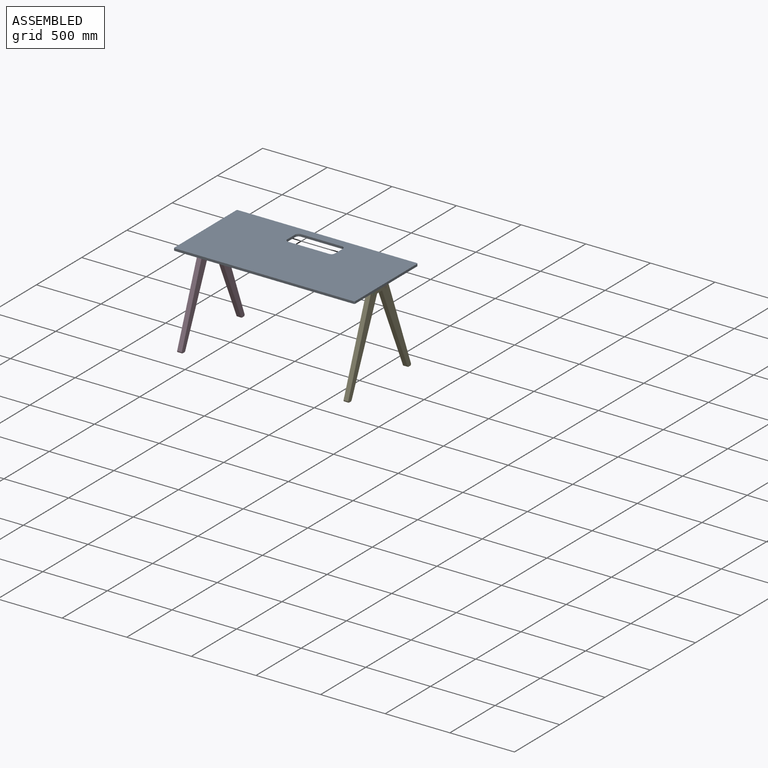
[diagram: assembled view]
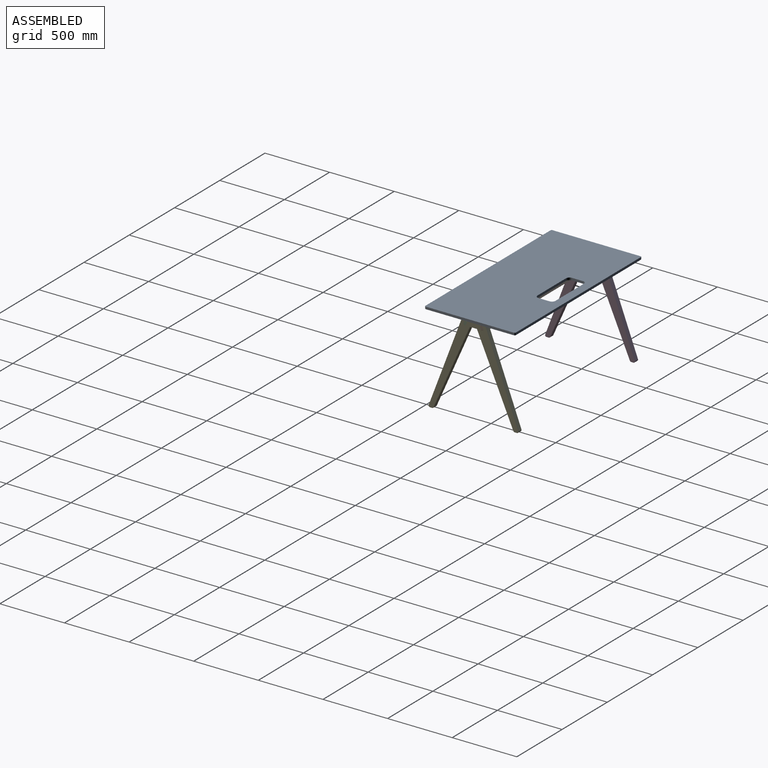
[diagram: assembled view, second angle]
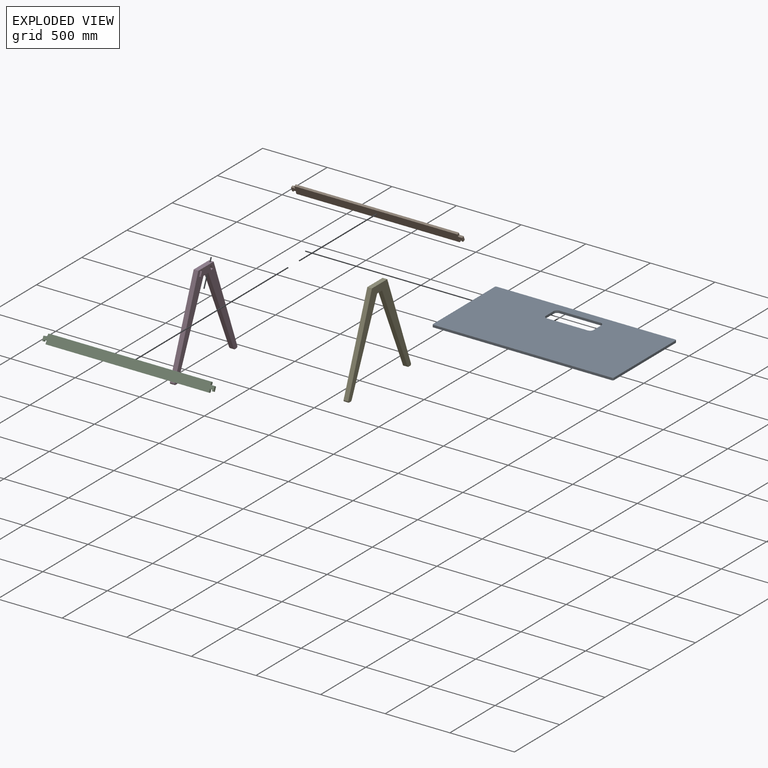
[diagram: exploded view]
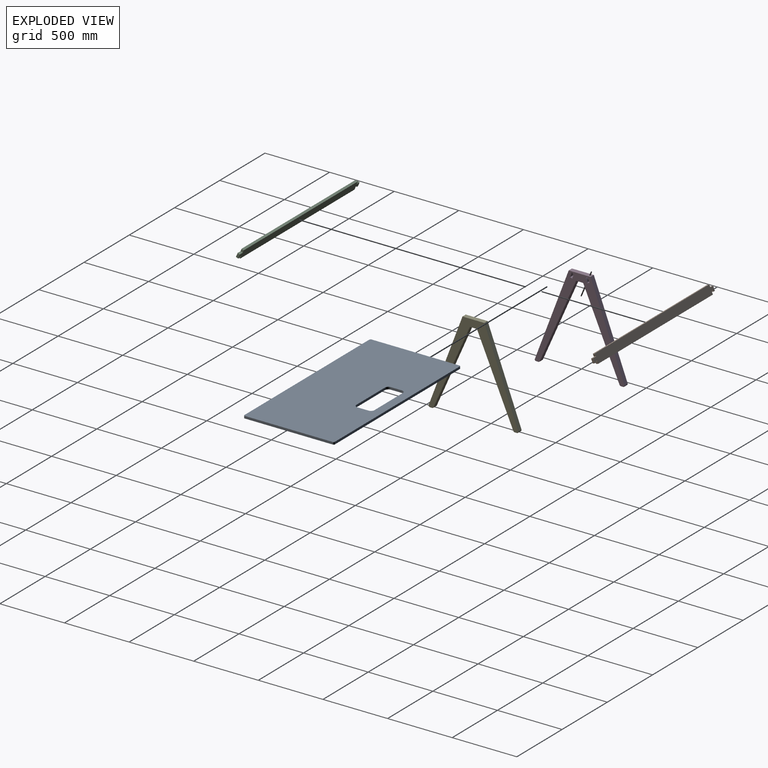
[diagram: exploded view, second angle]
ASSEMBLY  parts=5 mates=3
PART A: 18 faces, bbox 700x1400x18 mm
  f0: plane 1382.5x18mm, normal (1,0,0), area 24885mm2, adj f1,f15,f16,f17
  f1: cylinder r=8.75mm len=18mm, axis (0,0,-1), area 247.4mm2, adj f0,f2,f16,f17
  f2: plane 682.5x18mm, normal (0,1,0), area 12285mm2, adj f1,f3,f16,f17
  f3: cylinder r=8.75mm len=18mm, axis (0,0,-1), area 247.4mm2, adj f2,f4,f16,f17
  f4: plane 1382.5x18mm, normal (-1,0,0), area 24885mm2, adj f3,f5,f16,f17
  f5: cylinder r=8.75mm len=18mm, axis (0,0,-1), area 247.4mm2, adj f4,f6,f16,f17
  f6: plane 682.5x18mm, normal (0,-1,0), area 12285mm2, adj f5,f15,f16,f17
  f7: cylinder r=26.8mm len=26.8mm, axis (0,0,-1), area 757.8mm2, adj f8,f14,f16,f17
  f8: plane 316x18mm, normal (-1,0,0), area 5688mm2, adj f7,f9,f16,f17
  f9: cylinder r=26.8mm len=26.8mm, axis (0,0,-1), area 757.8mm2, adj f8,f10,f16,f17
  f10: plane 86x18mm, normal (0,1,0), area 1548mm2, adj f9,f11,f16,f17
  f11: cylinder r=26.8mm len=26.8mm, axis (0,0,-1), area 757.8mm2, adj f10,f12,f16,f17
  f12: plane 316x18mm, normal (1,0,0), area 5688mm2, adj f11,f13,f16,f17
  f13: cylinder r=26.8mm len=26.8mm, axis (0,0,-1), area 757.8mm2, adj f12,f14,f16,f17
  f14: plane 86x18mm, normal (0,-1,0), area 1548mm2, adj f7,f13,f16,f17
  f15: cylinder r=8.75mm len=18mm, axis (0,0,-1), area 247.4mm2, adj f0,f6,f16,f17
  f16: plane 1400x700mm, normal (0,0,1), area 928954.8mm2, adj f0,f1,f2,f3,f4,f5,f6,f7
  f17: plane 1400x700mm, normal (0,0,-1), area 928954.8mm2, adj f0,f1,f2,f3,f4,f5,f6,f7
PART B: 34 faces, bbox 70x18x1324.8 mm
  f0: plane 1263.03x18mm, normal (-1,0,0), area 22734.6mm2, adj f1,f31,f32,f33
  f1: cylinder r=1mm len=18mm, axis (0,1,0), area 28.3mm2, adj f0,f2,f32,f33
  f2: plane 18x17.34mm, normal (0,0,-1), area 312.2mm2, adj f1,f3,f32,f33
  f3: cylinder r=4mm len=18mm, axis (0,1,0), area 226.2mm2, adj f2,f4,f32,f33
  f4: plane 18x5.69mm, normal (-1,0,0), area 102.4mm2, adj f3,f5,f32,f33
  f5: cylinder r=4mm len=18mm, axis (0,1,0), area 226.2mm2, adj f4,f6,f32,f33
  f6: plane 18x2.34mm, normal (0,0,1), area 42.2mm2, adj f5,f7,f32,f33
  f7: cylinder r=2mm len=18mm, axis (0,1,0), area 56.5mm2, adj f6,f8,f32,f33
  f8: plane 18x8.88mm, normal (-1,0,0), area 159.9mm2, adj f7,f9,f32,f33
  f9: cylinder r=2mm len=18mm, axis (0,1,0), area 56.5mm2, adj f8,f10,f32,f33
  f10: plane 31.24x18mm, normal (0,0,-1), area 562.3mm2, adj f9,f11,f32,f33
  f11: cylinder r=2mm len=18mm, axis (0,1,0), area 56.5mm2, adj f10,f12,f32,f33
  f12: plane 23.24x18mm, normal (1,0,0), area 418.4mm2, adj f11,f13,f32,f33
  f13: cylinder r=4mm len=18mm, axis (0,1,0), area 226.2mm2, adj f12,f14,f32,f33
  f14: plane 18x13.09mm, normal (0,0,-1), area 235.7mm2, adj f13,f15,f32,f33
  f15: cylinder r=2mm len=18mm, axis (0,1,0), area 56.5mm2, adj f14,f16,f32,f33
  f16: plane 1259.03x18mm, normal (1,0,0), area 22662.6mm2, adj f15,f17,f32,f33
  f17: cylinder r=2mm len=18mm, axis (0,1,0), area 56.5mm2, adj f16,f18,f32,f33
  f18: plane 18x13.09mm, normal (0,0,1), area 235.7mm2, adj f17,f19,f32,f33
  f19: cylinder r=4mm len=18mm, axis (0,1,0), area 223.8mm2, adj f18,f20,f32,f33
  f20: plane 23.34x18mm, normal (1,0,0), area 420.1mm2, adj f19,f21,f32,f33
  f21: cylinder r=2mm len=18mm, axis (0,1,0), area 56.5mm2, adj f20,f22,f32,f33
  f22: plane 31.15x18mm, normal (0,0,1), area 560.7mm2, adj f21,f23,f32,f33
  f23: cylinder r=2mm len=18mm, axis (0,1,0), area 56.5mm2, adj f22,f24,f32,f33
  f24: plane 18x8.9mm, normal (-1,0,0), area 160.2mm2, adj f23,f25,f32,f33
  f25: cylinder r=2mm len=18mm, axis (0,1,0), area 56.5mm2, adj f24,f26,f32,f33
  f26: plane 18x2.34mm, normal (0,0,-1), area 42.2mm2, adj f25,f27,f32,f33
  f27: cylinder r=4mm len=18mm, axis (0,1,0), area 226.2mm2, adj f26,f28,f32,f33
  f28: plane 18x6.69mm, normal (-1,0,0), area 120.4mm2, adj f27,f29,f32,f33
  f29: cylinder r=4mm len=18mm, axis (0,1,0), area 248.6mm2, adj f28,f30,f32,f33
  f30: plane 18x16.61mm, normal (0,0,1), area 299.1mm2, adj f29,f31,f32,f33
  f31: cylinder r=1mm len=18mm, axis (0,1,0), area 28.3mm2, adj f0,f30,f32,f33
  f32: plane 1324.83x70mm, normal (0,-1,0), area 90207.7mm2, adj f0,f1,f2,f3,f4,f5,f6,f7
  f33: plane 1324.83x70mm, normal (0,1,0), area 90207.7mm2, adj f0,f1,f2,f3,f4,f5,f6,f7
PART C: same geometry as B
PART D: 38 faces, bbox 36x694.1x702 mm
  f0: plane 702.04x694.13mm, normal (-1,0,0), area 86384.5mm2, adj f1,f2,f3,f4,f5,f6,f7,f8
  f1: plane 36x27mm, normal (0,0,-1), area 971.9mm2, adj f0,f2,f18,f19
  f2: plane 36x0mm, normal (0,-0.85,0.53), area 0.2mm2, adj f0,f1,f3,f19
  f3: plane 638.9x282.02mm, normal (0,-0.91,-0.4), area 25141.4mm2, adj f0,f2,f4,f19
  f4: cylinder r=10mm len=36mm, axis (-1,0,0), area 415.8mm2, adj f0,f3,f5,f19
  f5: plane 36x18.89mm, normal (0,0,-1), area 680.2mm2, adj f0,f4,f6,f19
  f6: cylinder r=10mm len=36mm, axis (-1,0,0), area 696.3mm2, adj f0,f5,f7,f19
  f7: plane 688.47x261.77mm, normal (0,0.93,0.36), area 26516.1mm2, adj f0,f6,f8,f19
  f8: plane 82.88x36mm, normal (0,0,1), area 2983.7mm2, adj f0,f7,f9,f19
  f9: plane 36x0mm, normal (0,0.6,-0.8), area 0mm2, adj f0,f8,f10,f19
  f10: plane 36x1.76mm, normal (0,0,1), area 63.3mm2, adj f0,f9,f11,f19
  f11: plane 84.64x36mm, normal (0,0,1), area 3046.9mm2, adj f0,f10,f12,f19
  f12: plane 688.47x261.78mm, normal (0,-0.93,0.36), area 26516.1mm2, adj f0,f11,f13,f19
  f13: cylinder r=10mm len=36mm, axis (-1,0,0), area 696.3mm2, adj f0,f12,f14,f19
  f14: plane 36x18.89mm, normal (0,0,-1), area 680.2mm2, adj f0,f13,f15,f19
  f15: cylinder r=10mm len=36mm, axis (-1,0,0), area 415.8mm2, adj f0,f14,f16,f19
  f16: plane 636.51x280.97mm, normal (0,0.91,-0.4), area 25047.5mm2, adj f0,f15,f17,f19
  f17: cylinder r=4mm len=36mm, axis (-1,0,0), area 166.3mm2, adj f0,f16,f18,f19
  f18: plane 36x24.39mm, normal (0,0,-1), area 878mm2, adj f0,f1,f17,f19
  f19: plane 702.04x694.13mm, normal (1,0,0), area 87734.9mm2, adj f1,f2,f3,f4,f5,f6,f7,f8
  f20: cylinder r=4mm len=30mm, axis (-1,0,0), area 378.8mm2, adj f0,f21,f27,f28
  f21: plane 30x6.16mm, normal (0,0.39,-0.92), area 200.5mm2, adj f0,f20,f22,f28
  f22: cylinder r=4mm len=30mm, axis (-1,0,0), area 378.6mm2, adj f0,f21,f23,f28
  f23: plane 30x22.61mm, normal (0,0.92,0.39), area 738.2mm2, adj f0,f22,f24,f28
  f24: cylinder r=4mm len=30mm, axis (-1,0,0), area 378.6mm2, adj f0,f23,f25,f28
  f25: plane 30x5.8mm, normal (0,-0.39,0.92), area 188.5mm2, adj f0,f24,f26,f28
  f26: cylinder r=4mm len=30mm, axis (-1,0,0), area 378.8mm2, adj f0,f25,f27,f28
  f27: plane 30x22.77mm, normal (0,-0.93,-0.38), area 738.1mm2, adj f0,f20,f26,f28
  f28: plane 40.67x30.93mm, normal (-1,0,0), area 675.2mm2, adj f20,f21,f22,f23,f24,f25,f26,f27
  f29: plane 30x6.16mm, normal (0,-0.39,-0.92), area 200.5mm2, adj f0,f30,f36,f37
  f30: cylinder r=4mm len=30mm, axis (-1,0,0), area 378.8mm2, adj f0,f29,f31,f37
  f31: plane 30x22.77mm, normal (0,0.93,-0.38), area 738.1mm2, adj f0,f30,f32,f37
  f32: cylinder r=4mm len=30mm, axis (-1,0,0), area 378.8mm2, adj f0,f31,f33,f37
  f33: plane 30x5.8mm, normal (0,0.39,0.92), area 188.5mm2, adj f0,f32,f34,f37
  f34: cylinder r=4mm len=30mm, axis (-1,0,0), area 378.6mm2, adj f0,f33,f35,f37
  f35: plane 30x22.61mm, normal (0,-0.92,0.39), area 738.2mm2, adj f0,f34,f36,f37
  f36: cylinder r=4mm len=30mm, axis (-1,0,0), area 378.6mm2, adj f0,f29,f35,f37
  f37: plane 40.67x30.93mm, normal (-1,0,0), area 675.2mm2, adj f29,f30,f31,f32,f33,f34,f35,f36
PART E: same geometry as D
PLACE A rot(axis=(0,0,1),90deg) t=(251.12,651.65,555.76)mm
PLACE B rot(axis=(0.19,-0.96,-0.19),92.2deg) t=(241.56,716.63,520.32)mm fixed
PLACE C rot(axis=(-0.19,-0.96,0.19),92.2deg) t=(241.56,592.68,513.37)mm fixed
PLACE D rot(axis=(0,0,1),180deg) t=(-383.95,646.36,202.59)mm
PLACE E t=(867.58,646.35,202.59)mm fixed
MATE planar C.f28 <-> D.f25  axis (0,-0.39,-0.92) through (-398.95,580.13,506.7)mm
MATE planar C.f4 <-> E.f33  axis (0,-0.39,-0.92) through (882.58,580.13,506.7)mm
MATE planar B.f4 <-> E.f25  axis (0,0.39,-0.92) through (882.58,712.58,506.7)mm
